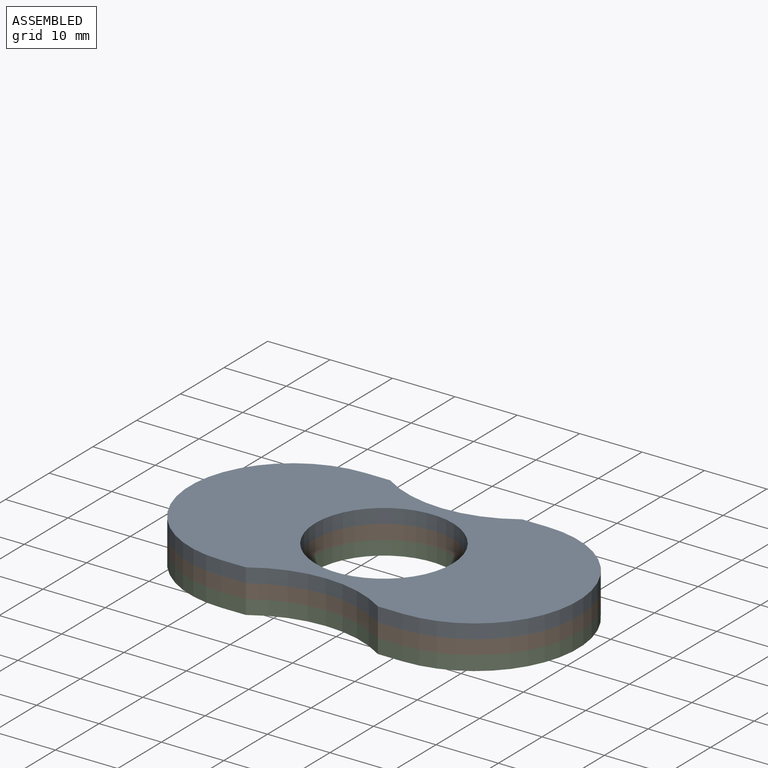
[diagram: assembled view]
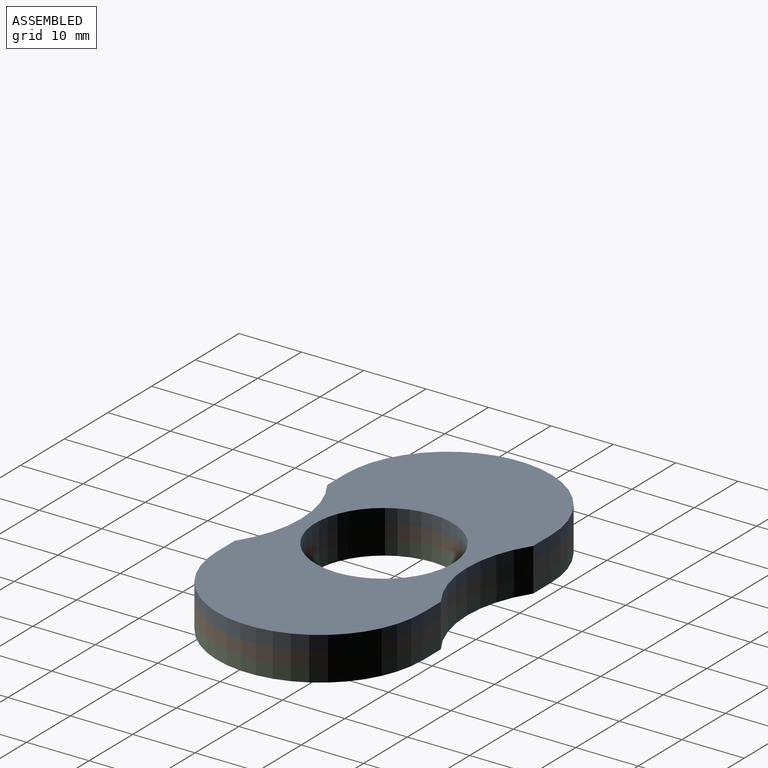
[diagram: assembled view, second angle]
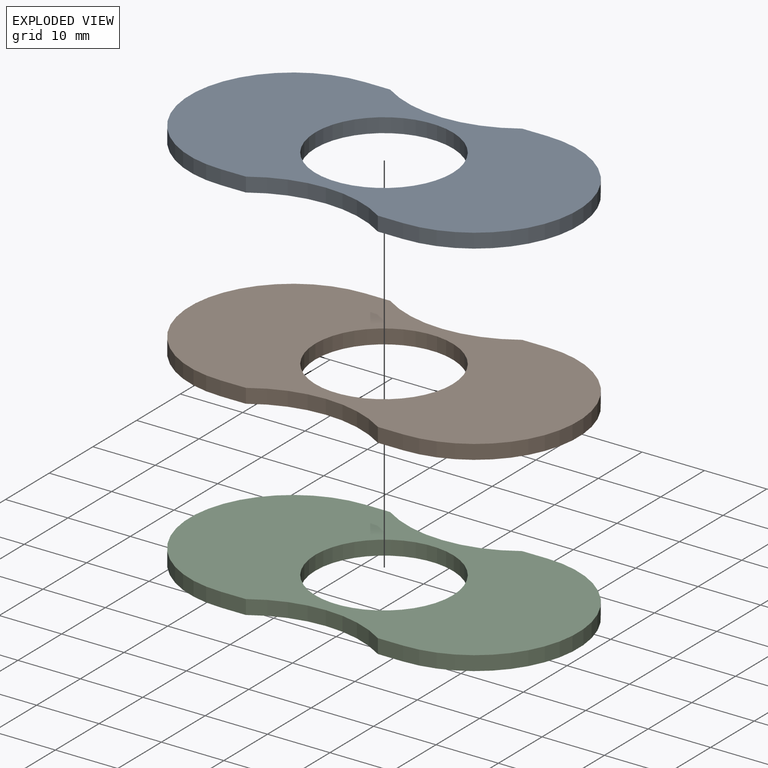
[diagram: exploded view]
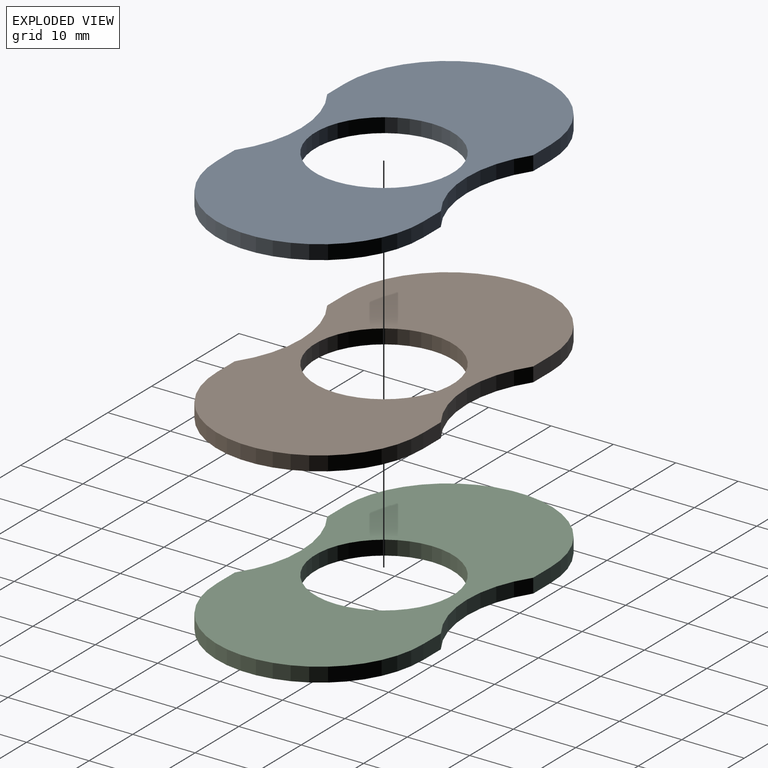
[diagram: exploded view, second angle]
ASSEMBLY  parts=3 mates=2
PART A: 11 faces, bbox 62.3x33x2.3 mm
  f0: cylinder r=19mm len=21.16mm, axis (0,0,-1), area 51.6mm2, adj f1,f7,f9,f10
  f1: plane 4.04x2.3mm, normal (0,-1,0), area 9.3mm2, adj f0,f2,f9,f10
  f2: cylinder r=16.51mm len=33.02mm, axis (0,0,-1), area 119.3mm2, adj f1,f3,f9,f10
  f3: plane 4.04x2.3mm, normal (0,1,0), area 9.3mm2, adj f2,f4,f9,f10
  f4: cylinder r=19mm len=21.16mm, axis (0,0,-1), area 51.6mm2, adj f3,f5,f9,f10
  f5: plane 4.04x2.3mm, normal (0,1,0), area 9.3mm2, adj f4,f6,f9,f10
  f6: cylinder r=16.51mm len=33.02mm, axis (0,0,-1), area 119.3mm2, adj f5,f7,f9,f10
  f7: plane 4.04x2.3mm, normal (0,-1,0), area 9.3mm2, adj f0,f6,f9,f10
  f8: cylinder r=11mm len=22mm, axis (0,0,-1), area 159mm2, adj f9,f10
  f9: plane 62.26x33.02mm, normal (0,0,1), area 1349.1mm2, adj f0,f1,f2,f3,f4,f5,f6,f7
  f10: plane 62.26x33.02mm, normal (0,0,-1), area 1349.1mm2, adj f0,f1,f2,f3,f4,f5,f6,f7
PART B: 11 faces, bbox 62.3x33x2.3 mm
  f0: cylinder r=19mm len=21.16mm, axis (0,0,-1), area 51.6mm2, adj f1,f7,f9,f10
  f1: plane 4.04x2.3mm, normal (0,-1,0), area 9.3mm2, adj f0,f2,f9,f10
  f2: cylinder r=16.51mm len=33.02mm, axis (0,0,-1), area 119.3mm2, adj f1,f3,f9,f10
  f3: plane 4.04x2.3mm, normal (0,1,0), area 9.3mm2, adj f2,f4,f9,f10
  f4: cylinder r=19mm len=21.16mm, axis (0,0,-1), area 51.6mm2, adj f3,f5,f9,f10
  f5: plane 4.04x2.3mm, normal (0,1,0), area 9.3mm2, adj f4,f6,f9,f10
  f6: cylinder r=16.51mm len=33.02mm, axis (0,0,-1), area 119.3mm2, adj f5,f7,f9,f10
  f7: plane 4.04x2.3mm, normal (0,-1,0), area 9.3mm2, adj f0,f6,f9,f10
  f8: cylinder r=11mm len=22mm, axis (0,0,-1), area 159mm2, adj f9,f10
  f9: plane 62.26x33.02mm, normal (0,0,1), area 1349.1mm2, adj f0,f1,f2,f3,f4,f5,f6,f7
  f10: plane 62.26x33.02mm, normal (0,0,-1), area 1349.1mm2, adj f0,f1,f2,f3,f4,f5,f6,f7
PART C: same geometry as A
PLACE A t=(-7.33,7.14,13.03)mm
PLACE B t=(-7.33,7.14,-17.72)mm
PLACE C t=(-7.33,7.14,8.43)mm
MATE fastened B.f6 <-> A.f6  axis (0,0,1) through (-21.95,7.14,11.88)mm
MATE fastened C.f6 <-> B.f6  axis (0,0,1) through (-21.95,7.14,9.58)mm
